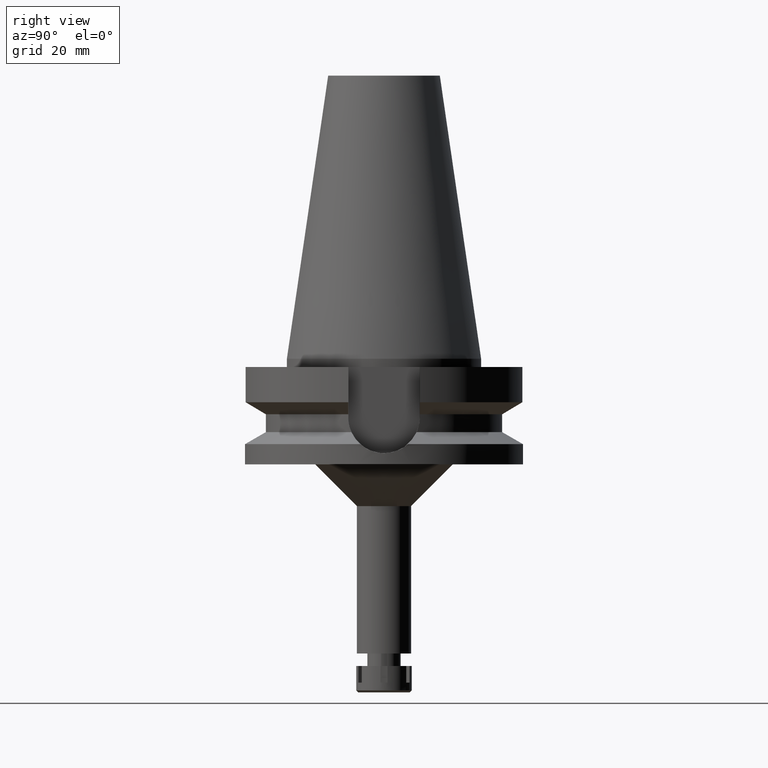
[diagram: clean part render]
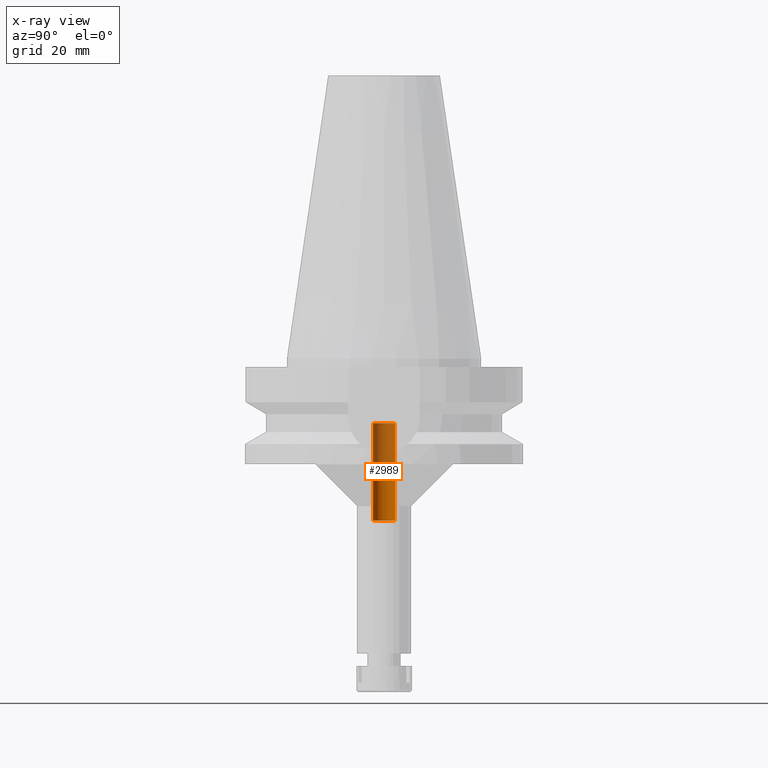
[diagram: x-ray — body ghosted, one internal face saturated and labeled with its STEP entity id]
A machine part, right view, then the same camera in x-ray: the body is ghosted and one INTERNAL B-rep face — a face not visible from any outside direction — is saturated and labeled: STEP entity #2989.
In plain terms, the highlighted cylindrical surface (edge-blend (fillet) strip) has radius 4 mm, axis along (0, 0, -1).
Its self-contained STEP definition (entity closure, byte-faithful):
#223 = ORIENTED_EDGE ( 'NONE', *, *, #384, .T. ) ;
#255 = CIRCLE ( 'NONE', #733, 4.000000000000000000 ) ;
#291 = CARTESIAN_POINT ( 'NONE',  ( 0.0000000000000000000, -4.000000000000000000, -58.20000000000000284 ) ) ;
#328 = VERTEX_POINT ( 'NONE', #2796 ) ;
#384 = EDGE_CURVE ( 'NONE', #1570, #3155, #2094, .T. ) ;
#407 = DIRECTION ( 'NONE',  ( 0.0000000000000000000, 0.0000000000000000000, 1.000000000000000000 ) ) ;
#494 = CARTESIAN_POINT ( 'NONE',  ( 0.0000000000000000000, 4.000000000000000000, -58.20000000000000284 ) ) ;
#723 = DIRECTION ( 'NONE',  ( 0.0000000000000000000, 0.0000000000000000000, 1.000000000000000000 ) ) ;
#733 = AXIS2_PLACEMENT_3D ( 'NONE', #2701, #407, #3249 ) ;
#763 = ORIENTED_EDGE ( 'NONE', *, *, #3357, .F. ) ;
#817 = ORIENTED_EDGE ( 'NONE', *, *, #2792, .T. ) ;
#935 = DIRECTION ( 'NONE',  ( 0.0000000000000000000, -1.000000000000000000, 0.0000000000000000000 ) ) ;
#965 = DIRECTION ( 'NONE',  ( 0.0000000000000000000, -1.000000000000000000, 0.0000000000000000000 ) ) ;
#971 = CARTESIAN_POINT ( 'NONE',  ( 0.0000000000000000000, -4.000000000000000000, -23.19999999999999929 ) ) ;
#978 = AXIS2_PLACEMENT_3D ( 'NONE', #2676, #1589, #965 ) ;
#1333 = CIRCLE ( 'NONE', #1772, 4.000000000000000000 ) ;
#1438 = DIRECTION ( 'NONE',  ( 0.0000000000000000000, 0.0000000000000000000, -1.000000000000000000 ) ) ;
#1521 = CYLINDRICAL_SURFACE ( 'NONE', #978, 4.000000000000000000 ) ;
#1570 = VERTEX_POINT ( 'NONE', #494 ) ;
#1589 = DIRECTION ( 'NONE',  ( 0.0000000000000000000, 0.0000000000000000000, -1.000000000000000000 ) ) ;
#1772 = AXIS2_PLACEMENT_3D ( 'NONE', #1800, #1438, #935 ) ;
#1800 = CARTESIAN_POINT ( 'NONE',  ( 0.0000000000000000000, 2.604088953706999655E-14, -58.20000000000000284 ) ) ;
#1871 = CARTESIAN_POINT ( 'NONE',  ( 0.0000000000000000000, 4.000000000000000000, -58.20000000000000284 ) ) ;
#1897 = EDGE_CURVE ( 'NONE', #3155, #2492, #255, .T. ) ;
#1917 = CARTESIAN_POINT ( 'NONE',  ( 0.0000000000000000000, 4.000000000000000000, -23.19999999999999929 ) ) ;
#1955 = EDGE_LOOP ( 'NONE', ( #2811, #763, #817, #223 ) ) ;
#2094 = LINE ( 'NONE', #1871, #2456 ) ;
#2247 = DIRECTION ( 'NONE',  ( 0.0000000000000000000, 0.0000000000000000000, 1.000000000000000000 ) ) ;
#2456 = VECTOR ( 'NONE', #723, 1000.000000000000000 ) ;
#2492 = VERTEX_POINT ( 'NONE', #971 ) ;
#2676 = CARTESIAN_POINT ( 'NONE',  ( 0.0000000000000000000, 2.604088953706999655E-14, 112.6400000000000006 ) ) ;
#2701 = CARTESIAN_POINT ( 'NONE',  ( 0.0000000000000000000, 2.604088953706999655E-14, -23.19999999999999929 ) ) ;
#2792 = EDGE_CURVE ( 'NONE', #328, #1570, #1333, .T. ) ;
#2796 = CARTESIAN_POINT ( 'NONE',  ( 0.0000000000000000000, -4.000000000000000000, -58.20000000000000284 ) ) ;
#2811 = ORIENTED_EDGE ( 'NONE', *, *, #1897, .T. ) ;
#2989 = ADVANCED_FACE ( 'NONE', ( #3008 ), #1521, .F. ) ;
#3008 = FACE_OUTER_BOUND ( 'NONE', #1955, .T. ) ;
#3155 = VERTEX_POINT ( 'NONE', #1917 ) ;
#3249 = DIRECTION ( 'NONE',  ( 0.0000000000000000000, 1.000000000000000000, 0.0000000000000000000 ) ) ;
#3357 = EDGE_CURVE ( 'NONE', #328, #2492, #3379, .T. ) ;
#3379 = LINE ( 'NONE', #291, #3567 ) ;
#3567 = VECTOR ( 'NONE', #2247, 1000.000000000000000 ) ;